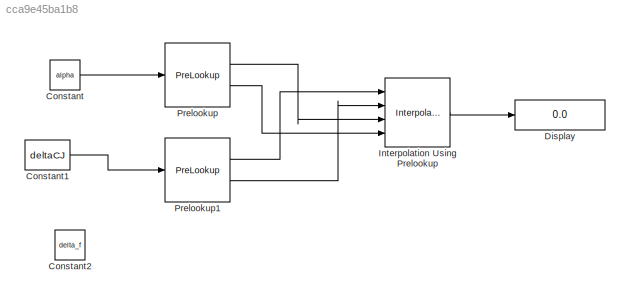
MODEL slx_cca9e45ba1b8
KIND model
CONFIG AbsTol = auto
CONFIG EnableMultiTasking = off
CONFIG FixedStep = auto
CONFIG InitFcn = initalize_test
CONFIG MaxStep = auto
CONFIG MinStep = auto
CONFIG RelTol = 1e-3
CONFIG SampleTimeConstraint = Unconstrained
CONFIG Solver = VariableStepAuto
CONFIG SolverName = VariableStepAuto
CONFIG StartTime = 0.0
CONFIG StopTime = 10.0
BLOCK [Constant] Constant
  Value = alpha
BLOCK [Constant] Constant1
  Value = deltaCJ
BLOCK [Constant] Constant2
  Value = delta_f
BLOCK [Display] Display
  Decimation = 1
  Ports = [1]
BLOCK [Interpolation_n-D] Interpolation Using Prelookup
  DiagnosticForOutOfRangeInput = Warning
  InputPortMap = u0,u1,u2,u3
  IntermediateResultsDataTypeStr = Inherit: Inherit via internal rule
  InternalRulePriority = Speed
  Ports = [4, 1]
  Table = cl
BLOCK [PreLookup] Prelookup
  BreakpointsData = alpha_vals
  DiagnosticForOutOfRangeInput = Warning
  ExtrapMethod = Linear
  InputPortMap = u0
  Ports = [1, 2]
BLOCK [PreLookup] Prelookup1
  BreakpointsData = deltaCJ_vals
  DiagnosticForOutOfRangeInput = Warning
  ExtrapMethod = Linear
  InputPortMap = u0
  Ports = [1, 2]
LINE Constant1:1 -> Prelookup1:1
LINE Constant:1 -> Prelookup:1
LINE Interpolation Using Prelookup:1 -> Display:1
LINE Prelookup1:1 -> Interpolation Using Prelookup:1
LINE Prelookup1:2 -> Interpolation Using Prelookup:2
LINE Prelookup:1 -> Interpolation Using Prelookup:3
LINE Prelookup:2 -> Interpolation Using Prelookup:4
